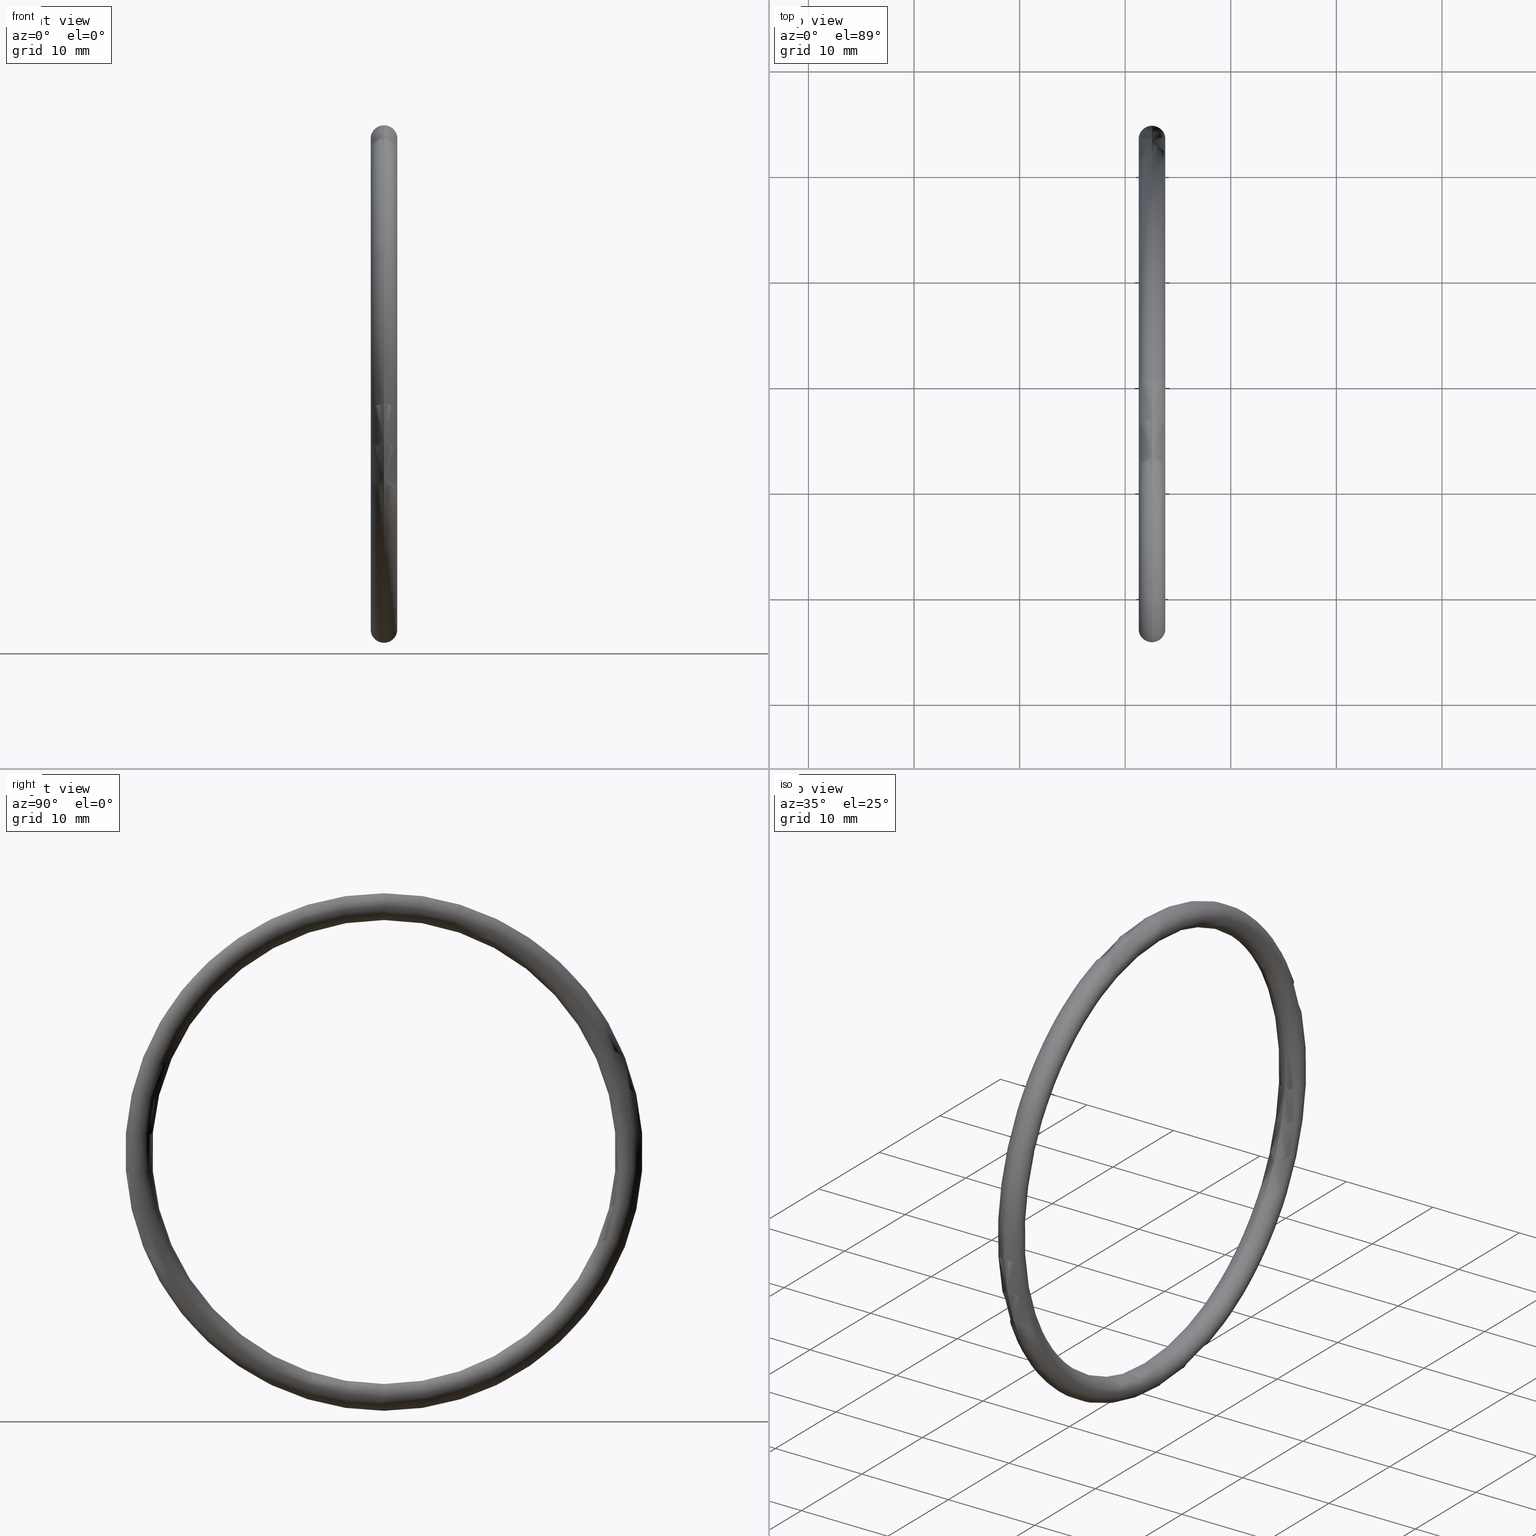
[diagram: canonical four-view strip — front | top / right | iso, engineering-drawing reading convention]
A machine part, canonical four-view strip (front | top / right | iso — engineering-drawing reading convention). The complete STEP part file that produces these views, byte-faithful:
ISO-10303-21;
HEADER;
FILE_DESCRIPTION (( 'STEP AP203' ),
    '1' );
FILE_NAME ('OR-64-VT.STEP',
    '2008-08-20T10:11:34',
    ( 'BSI05' ),
    ( 'BAYSTATE' ),
    'SwSTEP 2.0',
    'SolidWorks 2007',
    '' );
FILE_SCHEMA (( 'CONFIG_CONTROL_DESIGN' ));
ENDSEC;

DATA;
#1 = ADVANCED_FACE ( 'NONE', ( #13 ), #12, .T. ) ;
#2 = EDGE_CURVE ( 'NONE', #80, #79, #6, .T. ) ;
#3 = DIRECTION ( 'NONE',  ( 0.0000000000000000000, 1.000000000000000000, 1.224646799147353200E-016 ) ) ;
#4 = CARTESIAN_POINT ( 'NONE',  ( 0.1000000000000001300, 1.120551821219828000E-016, -0.9149999999999999200 ) ) ;
#5 = AXIS2_PLACEMENT_3D ( 'NONE', #4, #3, #68 ) ;
#6 = CIRCLE ( 'NONE', #5, 0.05000000000000001000 ) ;
#7 = CARTESIAN_POINT ( 'NONE',  ( 0.1000000000000001300, 0.0000000000000000000, 0.9149999999999999200 ) ) ;
#8 = DIRECTION ( 'NONE',  ( 0.0000000000000000000, 0.0000000000000000000, 1.000000000000000000 ) ) ;
#9 = DIRECTION ( 'NONE',  ( -1.000000000000000000, 0.0000000000000000000, 0.0000000000000000000 ) ) ;
#10 = CARTESIAN_POINT ( 'NONE',  ( 0.1000000000000001300, 0.0000000000000000000, 0.0000000000000000000 ) ) ;
#11 = AXIS2_PLACEMENT_3D ( 'NONE', #10, #9, #8 ) ;
#12 = TOROIDAL_SURFACE ( 'NONE', #11, 0.9149999999999999200, 0.05000000000000002400 ) ;
#13 = FACE_OUTER_BOUND ( 'NONE', #14, .T. ) ;
#14 = EDGE_LOOP ( 'NONE', ( #15, #16, #48, #20 ) ) ;
#15 = ORIENTED_EDGE ( 'NONE', *, *, #21, .F. ) ;
#16 = ORIENTED_EDGE ( 'NONE', *, *, #19, .F. ) ;
#17 = ORIENTED_EDGE ( 'NONE', *, *, #26, .T. ) ;
#18 = EDGE_LOOP ( 'NONE', ( #49, #73, #51, #50 ) ) ;
#19 = EDGE_CURVE ( 'NONE', #32, #31, #66, .T. ) ;
#20 = ORIENTED_EDGE ( 'NONE', *, *, #2, .T. ) ;
#21 = EDGE_CURVE ( 'NONE', #31, #79, #61, .T. ) ;
#22 = ORIENTED_EDGE ( 'NONE', *, *, #78, .T. ) ;
#23 = ORIENTED_EDGE ( 'NONE', *, *, #24, .F. ) ;
#24 = EDGE_CURVE ( 'NONE', #32, #80, #56, .T. ) ;
#25 = ADVANCED_FACE ( 'NONE', ( #57 ), #46, .T. ) ;
#26 = EDGE_CURVE ( 'NONE', #31, #32, #41, .T. ) ;
#27 = ORIENTED_EDGE ( 'NONE', *, *, #28, .F. ) ;
#28 = EDGE_CURVE ( 'NONE', #80, #32, #36, .T. ) ;
#29 = ORIENTED_EDGE ( 'NONE', *, *, #30, .T. ) ;
#30 = EDGE_CURVE ( 'NONE', #79, #31, #109, .T. ) ;
#31 = VERTEX_POINT ( 'NONE', #115 ) ;
#32 = VERTEX_POINT ( 'NONE', #101 ) ;
#33 = DIRECTION ( 'NONE',  ( 0.0000000000000000000, 0.0000000000000000000, 1.000000000000000000 ) ) ;
#34 = DIRECTION ( 'NONE',  ( -1.000000000000000000, 0.0000000000000000000, 0.0000000000000000000 ) ) ;
#35 = AXIS2_PLACEMENT_3D ( 'NONE', #42, #34, #33 ) ;
#36 = CIRCLE ( 'NONE', #35, 0.8649999999999998800 ) ;
#37 = DIRECTION ( 'NONE',  ( 0.0000000000000000000, 0.0000000000000000000, -1.000000000000000000 ) ) ;
#38 = DIRECTION ( 'NONE',  ( 0.0000000000000000000, -1.000000000000000000, 0.0000000000000000000 ) ) ;
#39 = CARTESIAN_POINT ( 'NONE',  ( 0.1000000000000001300, 0.0000000000000000000, 0.9149999999999999200 ) ) ;
#40 = AXIS2_PLACEMENT_3D ( 'NONE', #39, #38, #37 ) ;
#41 = CIRCLE ( 'NONE', #40, 0.05000000000000001000 ) ;
#42 = CARTESIAN_POINT ( 'NONE',  ( 0.1000000000000001300, 0.0000000000000000000, 0.0000000000000000000 ) ) ;
#43 = DIRECTION ( 'NONE',  ( 0.0000000000000000000, 0.0000000000000000000, 1.000000000000000000 ) ) ;
#44 = DIRECTION ( 'NONE',  ( -1.000000000000000000, 0.0000000000000000000, 0.0000000000000000000 ) ) ;
#45 = AXIS2_PLACEMENT_3D ( 'NONE', #52, #44, #43 ) ;
#46 = TOROIDAL_SURFACE ( 'NONE', #45, 0.9149999999999999200, 0.05000000000000002400 ) ;
#47 = CLOSED_SHELL ( 'NONE', ( #75, #69, #1, #25 ) ) ;
#48 = ORIENTED_EDGE ( 'NONE', *, *, #24, .T. ) ;
#49 = ORIENTED_EDGE ( 'NONE', *, *, #30, .F. ) ;
#50 = ORIENTED_EDGE ( 'NONE', *, *, #19, .T. ) ;
#51 = ORIENTED_EDGE ( 'NONE', *, *, #28, .T. ) ;
#52 = CARTESIAN_POINT ( 'NONE',  ( 0.1000000000000001300, 0.0000000000000000000, 0.0000000000000000000 ) ) ;
#53 = DIRECTION ( 'NONE',  ( 0.0000000000000000000, 0.0000000000000000000, 1.000000000000000000 ) ) ;
#54 = DIRECTION ( 'NONE',  ( -1.000000000000000000, 0.0000000000000000000, 0.0000000000000000000 ) ) ;
#55 = AXIS2_PLACEMENT_3D ( 'NONE', #62, #54, #53 ) ;
#56 = CIRCLE ( 'NONE', #55, 0.8649999999999998800 ) ;
#57 = FACE_OUTER_BOUND ( 'NONE', #18, .T. ) ;
#58 = DIRECTION ( 'NONE',  ( 0.0000000000000000000, 0.0000000000000000000, 1.000000000000000000 ) ) ;
#59 = DIRECTION ( 'NONE',  ( -1.000000000000000000, 0.0000000000000000000, 0.0000000000000000000 ) ) ;
#60 = AXIS2_PLACEMENT_3D ( 'NONE', #67, #59, #58 ) ;
#61 = CIRCLE ( 'NONE', #60, 0.9649999999999999700 ) ;
#62 = CARTESIAN_POINT ( 'NONE',  ( 0.1000000000000001300, 0.0000000000000000000, 0.0000000000000000000 ) ) ;
#63 = DIRECTION ( 'NONE',  ( 0.0000000000000000000, 0.0000000000000000000, -1.000000000000000000 ) ) ;
#64 = DIRECTION ( 'NONE',  ( 0.0000000000000000000, -1.000000000000000000, 0.0000000000000000000 ) ) ;
#65 = AXIS2_PLACEMENT_3D ( 'NONE', #7, #64, #63 ) ;
#66 = CIRCLE ( 'NONE', #65, 0.05000000000000001000 ) ;
#67 = CARTESIAN_POINT ( 'NONE',  ( 0.1000000000000001300, 0.0000000000000000000, 0.0000000000000000000 ) ) ;
#68 = DIRECTION ( 'NONE',  ( 0.0000000000000000000, -1.224646799147354700E-016, 1.000000000000000000 ) ) ;
#69 = ADVANCED_FACE ( 'NONE', ( #100 ), #106, .T. ) ;
#70 = EDGE_LOOP ( 'NONE', ( #71, #72, #22, #23 ) ) ;
#71 = ORIENTED_EDGE ( 'NONE', *, *, #26, .F. ) ;
#72 = ORIENTED_EDGE ( 'NONE', *, *, #21, .T. ) ;
#73 = ORIENTED_EDGE ( 'NONE', *, *, #2, .F. ) ;
#74 = MANIFOLD_SOLID_BREP ( 'NONE', #47 ) ;
#75 = ADVANCED_FACE ( 'NONE', ( #119 ), #81, .T. ) ;
#76 = EDGE_LOOP ( 'NONE', ( #77, #29, #17, #27 ) ) ;
#77 = ORIENTED_EDGE ( 'NONE', *, *, #78, .F. ) ;
#78 = EDGE_CURVE ( 'NONE', #79, #80, #92, .T. ) ;
#79 = VERTEX_POINT ( 'NONE', #108 ) ;
#80 = VERTEX_POINT ( 'NONE', #111 ) ;
#81 = TOROIDAL_SURFACE ( 'NONE', #118, 0.9149999999999999200, 0.05000000000000002400 ) ;
#82 = DIRECTION ( 'NONE',  ( -1.000000000000000000, 0.0000000000000000000, 0.0000000000000000000 ) ) ;
#83 = AXIS2_PLACEMENT_3D ( 'NONE', #85, #84, #116 ) ;
#84 = DIRECTION ( 'NONE',  ( -1.000000000000000000, 0.0000000000000000000, 0.0000000000000000000 ) ) ;
#85 = CARTESIAN_POINT ( 'NONE',  ( 0.1000000000000001300, 0.0000000000000000000, 0.0000000000000000000 ) ) ;
#86 = UNCERTAINTY_MEASURE_WITH_UNIT (LENGTH_MEASURE( 1.000000000000000100E-005 ), #99, 'distance_accuracy_value', 'NONE');
#87 =( NAMED_UNIT ( * ) SI_UNIT ( $, .STERADIAN. ) SOLID_ANGLE_UNIT ( ) );
#88 = DIRECTION ( 'NONE',  ( 0.0000000000000000000, -1.224646799147354700E-016, 1.000000000000000000 ) ) ;
#89 = DIRECTION ( 'NONE',  ( 0.0000000000000000000, 1.000000000000000000, 1.224646799147353200E-016 ) ) ;
#90 = CARTESIAN_POINT ( 'NONE',  ( 0.1000000000000001300, 1.120551821219828000E-016, -0.9149999999999999200 ) ) ;
#91 = AXIS2_PLACEMENT_3D ( 'NONE', #90, #89, #88 ) ;
#92 = CIRCLE ( 'NONE', #91, 0.05000000000000001000 ) ;
#93 = DIRECTION ( 'NONE',  ( 1.000000000000000000, 0.0000000000000000000, 0.0000000000000000000 ) ) ;
#94 = CARTESIAN_POINT ( 'NONE',  ( 0.0000000000000000000, 0.0000000000000000000, 0.0000000000000000000 ) ) ;
#95 = AXIS2_PLACEMENT_3D ( 'NONE', #94, #110, #93 ) ;
#96 = ADVANCED_BREP_SHAPE_REPRESENTATION ( 'OR-64-VT', ( #74, #95 ), #97 ) ;
#97 =( GEOMETRIC_REPRESENTATION_CONTEXT ( 3 ) GLOBAL_UNCERTAINTY_ASSIGNED_CONTEXT ( ( #86 ) ) GLOBAL_UNIT_ASSIGNED_CONTEXT ( ( #99, #98, #87 ) ) REPRESENTATION_CONTEXT ( 'NONE', 'WORKASPACE' ) );
#98 =( NAMED_UNIT ( * ) PLANE_ANGLE_UNIT ( ) SI_UNIT ( $, .RADIAN. ) );
#99 =( CONVERSION_BASED_UNIT ( 'INCH', #102 ) LENGTH_UNIT ( ) NAMED_UNIT ( #103 ) );
#100 = FACE_OUTER_BOUND ( 'NONE', #70, .T. ) ;
#101 = CARTESIAN_POINT ( 'NONE',  ( 0.1000000000000001300, 0.0000000000000000000, 0.8649999999999998800 ) ) ;
#102 = LENGTH_MEASURE_WITH_UNIT ( LENGTH_MEASURE( 0.02539999999999999900 ), #107 );
#103 = DIMENSIONAL_EXPONENTS ( 1.000000000000000000, 0.0000000000000000000, 0.0000000000000000000, 0.0000000000000000000, 0.0000000000000000000, 0.0000000000000000000, 0.0000000000000000000 ) ;
#104 = CARTESIAN_POINT ( 'NONE',  ( 0.1000000000000001300, 0.0000000000000000000, 0.0000000000000000000 ) ) ;
#105 = AXIS2_PLACEMENT_3D ( 'NONE', #114, #113, #112 ) ;
#106 = TOROIDAL_SURFACE ( 'NONE', #105, 0.9149999999999999200, 0.05000000000000002400 ) ;
#107 =( LENGTH_UNIT ( ) NAMED_UNIT ( * ) SI_UNIT ( $, .METRE. ) );
#108 = CARTESIAN_POINT ( 'NONE',  ( 0.1000000000000001300, 1.181784161177195800E-016, -0.9649999999999999700 ) ) ;
#109 = CIRCLE ( 'NONE', #83, 0.9649999999999999700 ) ;
#110 = DIRECTION ( 'NONE',  ( 0.0000000000000000000, 0.0000000000000000000, 1.000000000000000000 ) ) ;
#111 = CARTESIAN_POINT ( 'NONE',  ( 0.1000000000000001300, 1.059319481262460300E-016, -0.8649999999999998800 ) ) ;
#112 = DIRECTION ( 'NONE',  ( 0.0000000000000000000, 0.0000000000000000000, 1.000000000000000000 ) ) ;
#113 = DIRECTION ( 'NONE',  ( -1.000000000000000000, 0.0000000000000000000, 0.0000000000000000000 ) ) ;
#114 = CARTESIAN_POINT ( 'NONE',  ( 0.1000000000000001300, 0.0000000000000000000, 0.0000000000000000000 ) ) ;
#115 = CARTESIAN_POINT ( 'NONE',  ( 0.1000000000000001300, 0.0000000000000000000, 0.9649999999999999700 ) ) ;
#116 = DIRECTION ( 'NONE',  ( 0.0000000000000000000, 0.0000000000000000000, 1.000000000000000000 ) ) ;
#117 = DIRECTION ( 'NONE',  ( 0.0000000000000000000, 0.0000000000000000000, 1.000000000000000000 ) ) ;
#118 = AXIS2_PLACEMENT_3D ( 'NONE', #104, #82, #117 ) ;
#119 = FACE_OUTER_BOUND ( 'NONE', #76, .T. ) ;
#120 = PERSON_AND_ORGANIZATION ( #196, #162 ) ;
#121 = PRODUCT ( 'OR-64-VT', 'OR-64-VT', '', ( #122 ) ) ;
#122 = MECHANICAL_CONTEXT ( 'NONE', #154, 'mechanical' ) ;
#123 = APPLICATION_PROTOCOL_DEFINITION ( 'international standard', 'config_control_design', 1994, #154 ) ;
#124 = CALENDAR_DATE ( 2008, 20, 8 ) ;
#125 = LOCAL_TIME ( 15, 41, 34.00000000000000000, #126 ) ;
#126 = COORDINATED_UNIVERSAL_TIME_OFFSET ( 5, 30, .AHEAD. ) ;
#127 = APPROVAL_PERSON_ORGANIZATION ( #131, #129, #128 ) ;
#128 = APPROVAL_ROLE ( '' ) ;
#129 = APPROVAL ( #130, 'UNSPECIFIED' ) ;
#130 = APPROVAL_STATUS ( 'not_yet_approved' ) ;
#131 = PERSON_AND_ORGANIZATION ( #196, #162 ) ;
#132 = PRODUCT_DEFINITION_FORMATION_WITH_SPECIFIED_SOURCE ( 'ANY', '', #121, .NOT_KNOWN. ) ;
#133 = CC_DESIGN_DATE_AND_TIME_ASSIGNMENT ( #135, #134, ( #156 ) ) ;
#134 = DATE_TIME_ROLE ( 'creation_date' ) ;
#135 = DATE_AND_TIME ( #136, #137 ) ;
#136 = CALENDAR_DATE ( 2008, 20, 8 ) ;
#137 = LOCAL_TIME ( 15, 41, 34.00000000000000000, #138 ) ;
#138 = COORDINATED_UNIVERSAL_TIME_OFFSET ( 5, 30, .AHEAD. ) ;
#139 = PRODUCT_DEFINITION_SHAPE ( 'NONE', 'NONE',  #156 ) ;
#140 = CC_DESIGN_PERSON_AND_ORGANIZATION_ASSIGNMENT ( #142, #141, ( #156 ) ) ;
#141 = PERSON_AND_ORGANIZATION_ROLE ( 'creator' ) ;
#142 = PERSON_AND_ORGANIZATION ( #196, #162 ) ;
#143 = CC_DESIGN_APPROVAL ( #151, ( #156 ) ) ;
#144 = APPROVAL_DATE_TIME ( #145, #151 ) ;
#145 = DATE_AND_TIME ( #146, #147 ) ;
#146 = CALENDAR_DATE ( 2008, 20, 8 ) ;
#147 = LOCAL_TIME ( 15, 41, 34.00000000000000000, #148 ) ;
#148 = COORDINATED_UNIVERSAL_TIME_OFFSET ( 5, 30, .AHEAD. ) ;
#149 = APPROVAL_PERSON_ORGANIZATION ( #155, #151, #150 ) ;
#150 = APPROVAL_ROLE ( '' ) ;
#151 = APPROVAL ( #152, 'UNSPECIFIED' ) ;
#152 = APPROVAL_STATUS ( 'not_yet_approved' ) ;
#153 = SHAPE_DEFINITION_REPRESENTATION ( #139, #96 ) ;
#154 = APPLICATION_CONTEXT ( 'configuration controlled 3d designs of mechanical parts and assemblies' ) ;
#155 = PERSON_AND_ORGANIZATION ( #196, #162 ) ;
#156 = PRODUCT_DEFINITION ( 'UNKNOWN', '', #132, #157 ) ;
#157 = DESIGN_CONTEXT ( 'detailed design', #159, 'design' ) ;
#158 = APPLICATION_PROTOCOL_DEFINITION ( 'international standard', 'config_control_design', 1994, #159 ) ;
#159 = APPLICATION_CONTEXT ( 'configuration controlled 3d designs of mechanical parts and assemblies' ) ;
#160 = CC_DESIGN_PERSON_AND_ORGANIZATION_ASSIGNMENT ( #120, #161, ( #121 ) ) ;
#161 = PERSON_AND_ORGANIZATION_ROLE ( 'design_owner' ) ;
#162 = ORGANIZATION ( 'UNSPECIFIED', 'UNSPECIFIED', '' ) ;
#163 = PRODUCT_RELATED_PRODUCT_CATEGORY ( 'detail', '', ( #121 ) ) ;
#164 = CC_DESIGN_SECURITY_CLASSIFICATION ( #185, ( #132 ) ) ;
#165 = CC_DESIGN_APPROVAL ( #173, ( #185 ) ) ;
#166 = APPROVAL_DATE_TIME ( #167, #173 ) ;
#167 = DATE_AND_TIME ( #168, #169 ) ;
#168 = CALENDAR_DATE ( 2008, 20, 8 ) ;
#169 = LOCAL_TIME ( 15, 41, 34.00000000000000000, #170 ) ;
#170 = COORDINATED_UNIVERSAL_TIME_OFFSET ( 5, 30, .AHEAD. ) ;
#171 = APPROVAL_PERSON_ORGANIZATION ( #175, #173, #172 ) ;
#172 = APPROVAL_ROLE ( '' ) ;
#173 = APPROVAL ( #174, 'UNSPECIFIED' ) ;
#174 = APPROVAL_STATUS ( 'not_yet_approved' ) ;
#175 = PERSON_AND_ORGANIZATION ( #196, #162 ) ;
#176 = CC_DESIGN_DATE_AND_TIME_ASSIGNMENT ( #178, #177, ( #185 ) ) ;
#177 = DATE_TIME_ROLE ( 'classification_date' ) ;
#178 = DATE_AND_TIME ( #179, #180 ) ;
#179 = CALENDAR_DATE ( 2008, 20, 8 ) ;
#180 = LOCAL_TIME ( 15, 41, 34.00000000000000000, #181 ) ;
#181 = COORDINATED_UNIVERSAL_TIME_OFFSET ( 5, 30, .AHEAD. ) ;
#182 = CC_DESIGN_PERSON_AND_ORGANIZATION_ASSIGNMENT ( #184, #183, ( #185 ) ) ;
#183 = PERSON_AND_ORGANIZATION_ROLE ( 'classification_officer' ) ;
#184 = PERSON_AND_ORGANIZATION ( #196, #162 ) ;
#185 = SECURITY_CLASSIFICATION ( '', '', #186 ) ;
#186 = SECURITY_CLASSIFICATION_LEVEL ( 'unclassified' ) ;
#187 = CC_DESIGN_PERSON_AND_ORGANIZATION_ASSIGNMENT ( #189, #188, ( #132 ) ) ;
#188 = PERSON_AND_ORGANIZATION_ROLE ( 'design_supplier' ) ;
#189 = PERSON_AND_ORGANIZATION ( #196, #162 ) ;
#190 = CC_DESIGN_PERSON_AND_ORGANIZATION_ASSIGNMENT ( #192, #191, ( #132 ) ) ;
#191 = PERSON_AND_ORGANIZATION_ROLE ( 'creator' ) ;
#192 = PERSON_AND_ORGANIZATION ( #196, #162 ) ;
#193 = CC_DESIGN_APPROVAL ( #129, ( #132 ) ) ;
#194 = APPROVAL_DATE_TIME ( #195, #129 ) ;
#195 = DATE_AND_TIME ( #124, #125 ) ;
#196 = PERSON ( 'UNSPECIFIED', 'UNSPECIFIED', 'UNSPECIFIED', ('UNSPECIFIED'), ('UNSPECIFIED'), ('UNSPECIFIED') ) ;
ENDSEC;
END-ISO-10303-21;
